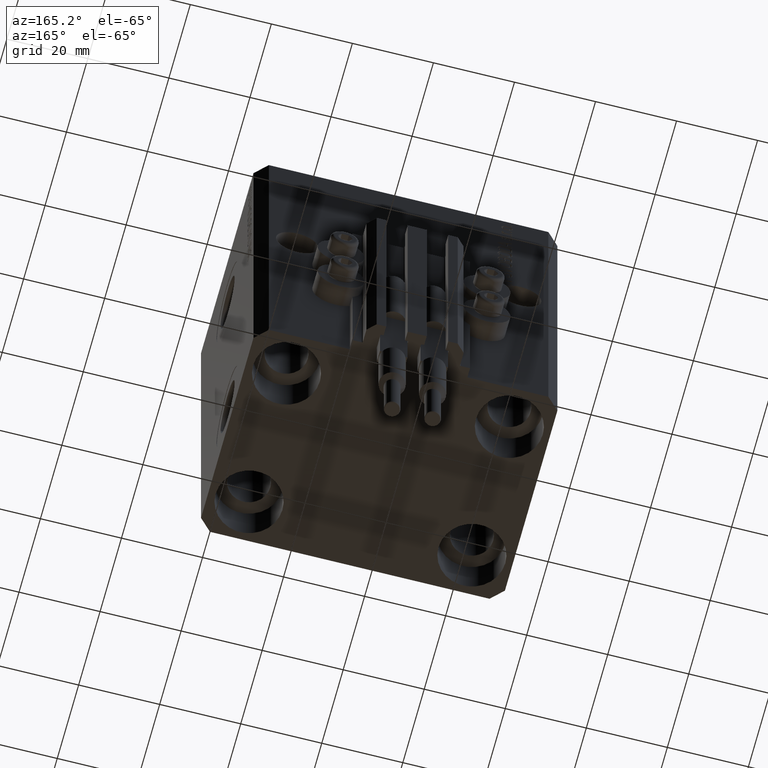
[diagram: clean part render]
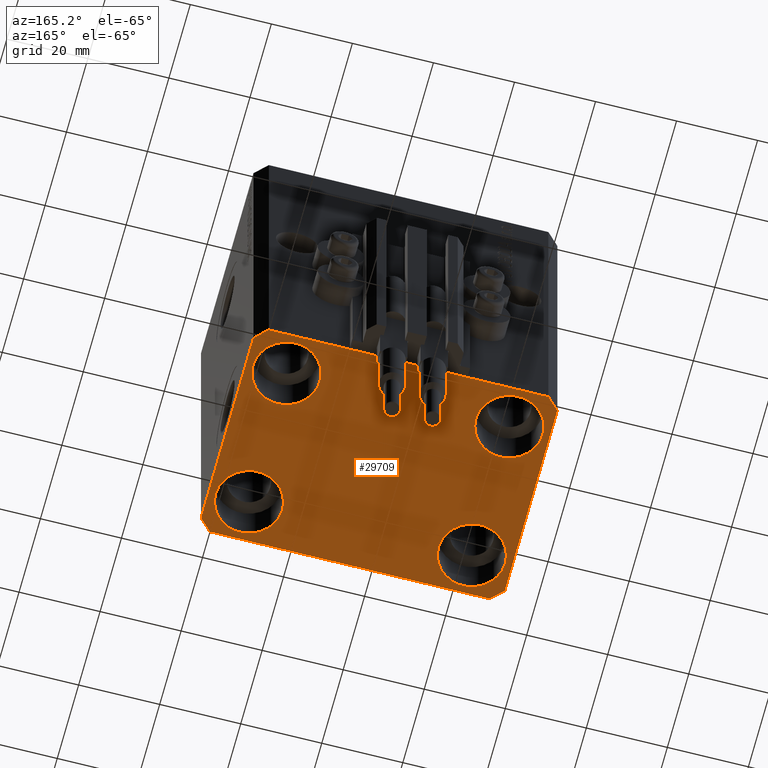
[diagram: same view with one face highlighted and labeled with its STEP entity id]
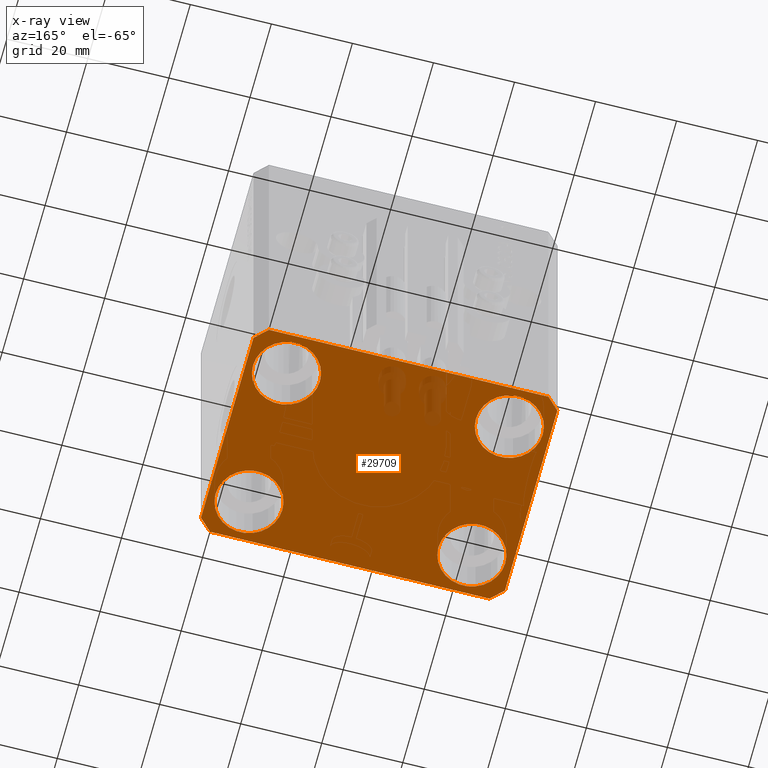
[diagram: x-ray of the same camera — body ghosted, the highlighted face saturated]
A machine part, auxiliary view. The second image highlights one B-rep face of the part: STEP entity #29709.
The next image is the same camera in x-ray: the body ghosted, the highlighted face saturated — about 4% of this face is hidden behind the body in this view.
In plain terms, the highlighted planar face has unit normal (0, 0, 1).
Its self-contained STEP definition (entity closure, byte-faithful):
#172 = EDGE_LOOP ( 'NONE', ( #11606, #16712 ) ) ;
#937 = LINE ( 'NONE', #38936, #29329 ) ;
#1115 = DIRECTION ( 'NONE',  ( -0.000000000000000000, -0.000000000000000000, 1.000000000000000000 ) ) ;
#1224 = CARTESIAN_POINT ( 'NONE',  ( 37.50000000000051870, 24.49999999999995381, -93.00000000000000000 ) ) ;
#1509 = LINE ( 'NONE', #1746, #28235 ) ;
#1602 = CARTESIAN_POINT ( 'NONE',  ( -27.50000000000000355, -17.50000000000000000, -93.00000000000000000 ) ) ;
#1746 = CARTESIAN_POINT ( 'NONE',  ( 37.49999999999999289, -24.50000000000000000, -93.00000000000000000 ) ) ;
#2081 = VECTOR ( 'NONE', #39594, 1000.000000000000000 ) ;
#2350 = ORIENTED_EDGE ( 'NONE', *, *, #44038, .T. ) ;
#2553 = EDGE_CURVE ( 'NONE', #18145, #21592, #24051, .T. ) ;
#2651 = EDGE_CURVE ( 'NONE', #33481, #22779, #9285, .T. ) ;
#3185 = CARTESIAN_POINT ( 'NONE',  ( 27.49999999999999645, 17.50000000000001066, -93.00000000000000000 ) ) ;
#3258 = CARTESIAN_POINT ( 'NONE',  ( -37.49999999999999289, 24.50000000000000000, -93.00000000000000000 ) ) ;
#3665 = CARTESIAN_POINT ( 'NONE',  ( -34.49999999999999289, 27.50000000000000000, -93.00000000000000000 ) ) ;
#3814 = VERTEX_POINT ( 'NONE', #34542 ) ;
#4061 = LINE ( 'NONE', #45245, #28482 ) ;
#4114 = VECTOR ( 'NONE', #43247, 1000.000000000000114 ) ;
#4134 = DIRECTION ( 'NONE',  ( 1.000000000000000000, 0.000000000000000000, 0.000000000000000000 ) ) ;
#4560 = AXIS2_PLACEMENT_3D ( 'NONE', #3185, #13942, #13704 ) ;
#4676 = EDGE_LOOP ( 'NONE', ( #33247, #39352, #21808, #31374, #32827, #11369, #18379, #15576 ) ) ;
#5296 = DIRECTION ( 'NONE',  ( 1.000000000000000000, 0.000000000000000000, 0.000000000000000000 ) ) ;
#6164 = AXIS2_PLACEMENT_3D ( 'NONE', #15103, #21711, #26073 ) ;
#6365 = FACE_BOUND ( 'NONE', #38099, .T. ) ;
#6383 = CARTESIAN_POINT ( 'NONE',  ( -19.25000000000000355, -17.50000000000000000, -93.00000000000000000 ) ) ;
#6801 = DIRECTION ( 'NONE',  ( 1.000000000000000000, 0.000000000000000000, 0.000000000000000000 ) ) ;
#6854 = DIRECTION ( 'NONE',  ( 0.000000000000000000, 0.000000000000000000, 1.000000000000000000 ) ) ;
#6996 = EDGE_CURVE ( 'NONE', #43619, #36894, #22877, .T. ) ;
#7986 = EDGE_CURVE ( 'NONE', #14867, #24941, #4061, .T. ) ;
#8035 = CARTESIAN_POINT ( 'NONE',  ( -34.49999999999998579, -27.49999999999999645, -93.00000000000000000 ) ) ;
#8318 = DIRECTION ( 'NONE',  ( 1.000000000000000000, 0.000000000000000000, 0.000000000000000000 ) ) ;
#9096 = EDGE_CURVE ( 'NONE', #42741, #47359, #18287, .T. ) ;
#9236 = ORIENTED_EDGE ( 'NONE', *, *, #14415, .T. ) ;
#9285 = CIRCLE ( 'NONE', #36495, 8.250000000000000000 ) ;
#10066 = CARTESIAN_POINT ( 'NONE',  ( -35.75000000000000711, -17.50000000000000000, -93.00000000000000000 ) ) ;
#10216 = DIRECTION ( 'NONE',  ( 1.000000000000000000, 0.000000000000000000, 0.000000000000000000 ) ) ;
#10695 = EDGE_CURVE ( 'NONE', #20668, #43619, #31011, .T. ) ;
#11369 = ORIENTED_EDGE ( 'NONE', *, *, #7986, .F. ) ;
#11606 = ORIENTED_EDGE ( 'NONE', *, *, #13691, .T. ) ;
#12051 = EDGE_CURVE ( 'NONE', #41084, #14867, #28644, .T. ) ;
#12240 = AXIS2_PLACEMENT_3D ( 'NONE', #1602, #1115, #12573 ) ;
#12562 = CARTESIAN_POINT ( 'NONE',  ( 34.49999999999999289, -27.49999999999999645, -93.00000000000000000 ) ) ;
#12573 = DIRECTION ( 'NONE',  ( 1.000000000000000000, 0.000000000000000000, 0.000000000000000000 ) ) ;
#12625 = CIRCLE ( 'NONE', #27409, 8.250000000000000000 ) ;
#13141 = EDGE_LOOP ( 'NONE', ( #25698, #2350 ) ) ;
#13691 = EDGE_CURVE ( 'NONE', #22779, #33481, #26209, .T. ) ;
#13704 = DIRECTION ( 'NONE',  ( 1.000000000000000000, 0.000000000000000000, 0.000000000000000000 ) ) ;
#13881 = CARTESIAN_POINT ( 'NONE',  ( 35.75000000000000711, -17.50000000000000000, -93.00000000000000000 ) ) ;
#13942 = DIRECTION ( 'NONE',  ( -0.000000000000000000, -0.000000000000000000, 1.000000000000000000 ) ) ;
#14415 = EDGE_CURVE ( 'NONE', #47359, #42741, #16963, .T. ) ;
#14867 = VERTEX_POINT ( 'NONE', #27875 ) ;
#15103 = CARTESIAN_POINT ( 'NONE',  ( 27.50000000000000355, -17.50000000000000000, -93.00000000000000000 ) ) ;
#15576 = ORIENTED_EDGE ( 'NONE', *, *, #42108, .F. ) ;
#15811 = DIRECTION ( 'NONE',  ( -0.7071067811865471286, -0.7071067811865479058, 0.000000000000000000 ) ) ;
#16659 = DIRECTION ( 'NONE',  ( -0.7071067811865356934, 0.7071067811865594521, 0.000000000000000000 ) ) ;
#16712 = ORIENTED_EDGE ( 'NONE', *, *, #2651, .T. ) ;
#16963 = CIRCLE ( 'NONE', #41019, 8.250000000000000000 ) ;
#17593 = CARTESIAN_POINT ( 'NONE',  ( 0.000000000000000000, 0.000000000000000000, -93.00000000000000000 ) ) ;
#17824 = VERTEX_POINT ( 'NONE', #30498 ) ;
#18145 = VERTEX_POINT ( 'NONE', #41658 ) ;
#18287 = CIRCLE ( 'NONE', #25319, 8.250000000000000000 ) ;
#18379 = ORIENTED_EDGE ( 'NONE', *, *, #12051, .F. ) ;
#19786 = EDGE_CURVE ( 'NONE', #21592, #18145, #22580, .T. ) ;
#20668 = VERTEX_POINT ( 'NONE', #1224 ) ;
#20948 = CIRCLE ( 'NONE', #6164, 8.250000000000000000 ) ;
#21230 = PLANE ( 'NONE',  #45361 ) ;
#21592 = VERTEX_POINT ( 'NONE', #22461 ) ;
#21711 = DIRECTION ( 'NONE',  ( -0.000000000000000000, -0.000000000000000000, 1.000000000000000000 ) ) ;
#21808 = ORIENTED_EDGE ( 'NONE', *, *, #29546, .F. ) ;
#21899 = CARTESIAN_POINT ( 'NONE',  ( -34.49999999999998579, -27.49999999999999645, -93.00000000000000000 ) ) ;
#21952 = FACE_BOUND ( 'NONE', #13141, .T. ) ;
#22461 = CARTESIAN_POINT ( 'NONE',  ( 19.25000000000000000, 17.50000000000001066, -93.00000000000000000 ) ) ;
#22580 = CIRCLE ( 'NONE', #42820, 8.249999999999992895 ) ;
#22779 = VERTEX_POINT ( 'NONE', #10066 ) ;
#22877 = LINE ( 'NONE', #26527, #38525 ) ;
#23772 = CARTESIAN_POINT ( 'NONE',  ( 34.49999999999999289, -27.49999999999999645, -93.00000000000000000 ) ) ;
#23834 = CARTESIAN_POINT ( 'NONE',  ( 27.49999999999999645, 17.50000000000001066, -93.00000000000000000 ) ) ;
#24005 = CARTESIAN_POINT ( 'NONE',  ( 34.50000000000056843, 27.50000000000000000, -93.00000000000000000 ) ) ;
#24051 = CIRCLE ( 'NONE', #4560, 8.249999999999992895 ) ;
#24415 = EDGE_CURVE ( 'NONE', #17824, #45128, #12625, .T. ) ;
#24941 = VERTEX_POINT ( 'NONE', #8035 ) ;
#25319 = AXIS2_PLACEMENT_3D ( 'NONE', #25323, #40159, #6801 ) ;
#25323 = CARTESIAN_POINT ( 'NONE',  ( -27.50000000000000355, 17.50000000000000000, -93.00000000000000000 ) ) ;
#25368 = VECTOR ( 'NONE', #16659, 1000.000000000000114 ) ;
#25378 = FACE_BOUND ( 'NONE', #172, .T. ) ;
#25698 = ORIENTED_EDGE ( 'NONE', *, *, #24415, .T. ) ;
#26073 = DIRECTION ( 'NONE',  ( 1.000000000000000000, 0.000000000000000000, 0.000000000000000000 ) ) ;
#26209 = CIRCLE ( 'NONE', #12240, 8.250000000000000000 ) ;
#26361 = EDGE_LOOP ( 'NONE', ( #40845, #41087 ) ) ;
#26471 = EDGE_CURVE ( 'NONE', #31514, #3814, #35455, .T. ) ;
#26527 = CARTESIAN_POINT ( 'NONE',  ( 34.50000000000056843, 27.50000000000000000, -93.00000000000000000 ) ) ;
#27343 = DIRECTION ( 'NONE',  ( 1.076236605503979380E-14, 1.000000000000000000, 0.000000000000000000 ) ) ;
#27376 = CARTESIAN_POINT ( 'NONE',  ( 37.50000000000051870, 24.49999999999995381, -93.00000000000000000 ) ) ;
#27409 = AXIS2_PLACEMENT_3D ( 'NONE', #38161, #34503, #30113 ) ;
#27875 = CARTESIAN_POINT ( 'NONE',  ( -37.49999999999999289, -24.50000000000000000, -93.00000000000000000 ) ) ;
#28235 = VECTOR ( 'NONE', #27343, 1000.000000000000000 ) ;
#28482 = VECTOR ( 'NONE', #45008, 1000.000000000000000 ) ;
#28644 = LINE ( 'NONE', #40069, #2081 ) ;
#29329 = VECTOR ( 'NONE', #15811, 1000.000000000000000 ) ;
#29546 = EDGE_CURVE ( 'NONE', #3814, #20668, #1509, .T. ) ;
#29709 = ADVANCED_FACE ( 'NONE', ( #25378, #21952, #40210, #6365, #36786 ), #21230, .F. ) ;
#30113 = DIRECTION ( 'NONE',  ( 1.000000000000000000, 0.000000000000000000, 0.000000000000000000 ) ) ;
#30235 = CARTESIAN_POINT ( 'NONE',  ( -35.75000000000000711, 17.50000000000000000, -93.00000000000000000 ) ) ;
#30498 = CARTESIAN_POINT ( 'NONE',  ( 19.25000000000000000, -17.50000000000000000, -93.00000000000000000 ) ) ;
#31011 = LINE ( 'NONE', #27376, #25368 ) ;
#31189 = DIRECTION ( 'NONE',  ( -0.000000000000000000, -0.000000000000000000, 1.000000000000000000 ) ) ;
#31374 = ORIENTED_EDGE ( 'NONE', *, *, #26471, .F. ) ;
#31514 = VERTEX_POINT ( 'NONE', #23772 ) ;
#32827 = ORIENTED_EDGE ( 'NONE', *, *, #45138, .F. ) ;
#33247 = ORIENTED_EDGE ( 'NONE', *, *, #6996, .F. ) ;
#33481 = VERTEX_POINT ( 'NONE', #6383 ) ;
#34111 = DIRECTION ( 'NONE',  ( -0.000000000000000000, -0.000000000000000000, 1.000000000000000000 ) ) ;
#34212 = ORIENTED_EDGE ( 'NONE', *, *, #9096, .T. ) ;
#34503 = DIRECTION ( 'NONE',  ( -0.000000000000000000, -0.000000000000000000, 1.000000000000000000 ) ) ;
#34542 = CARTESIAN_POINT ( 'NONE',  ( 37.49999999999999289, -24.50000000000000000, -93.00000000000000000 ) ) ;
#34614 = CARTESIAN_POINT ( 'NONE',  ( -27.50000000000000355, 17.50000000000000000, -93.00000000000000000 ) ) ;
#35455 = LINE ( 'NONE', #12562, #4114 ) ;
#36495 = AXIS2_PLACEMENT_3D ( 'NONE', #40934, #34111, #4134 ) ;
#36558 = DIRECTION ( 'NONE',  ( 1.000000000000000000, 0.000000000000000000, -0.000000000000000000 ) ) ;
#36786 = FACE_OUTER_BOUND ( 'NONE', #4676, .T. ) ;
#36894 = VERTEX_POINT ( 'NONE', #3665 ) ;
#37475 = DIRECTION ( 'NONE',  ( -1.000000000000000000, 0.000000000000000000, 0.000000000000000000 ) ) ;
#38099 = EDGE_LOOP ( 'NONE', ( #34212, #9236 ) ) ;
#38161 = CARTESIAN_POINT ( 'NONE',  ( 27.50000000000000355, -17.50000000000000000, -93.00000000000000000 ) ) ;
#38525 = VECTOR ( 'NONE', #37475, 1000.000000000000000 ) ;
#38936 = CARTESIAN_POINT ( 'NONE',  ( -34.49999999999999289, 27.50000000000000000, -93.00000000000000000 ) ) ;
#39352 = ORIENTED_EDGE ( 'NONE', *, *, #10695, .F. ) ;
#39594 = DIRECTION ( 'NONE',  ( 0.000000000000000000, -1.000000000000000000, 0.000000000000000000 ) ) ;
#40069 = CARTESIAN_POINT ( 'NONE',  ( -37.49999999999999289, 24.50000000000000000, -93.00000000000000000 ) ) ;
#40159 = DIRECTION ( 'NONE',  ( -0.000000000000000000, -0.000000000000000000, 1.000000000000000000 ) ) ;
#40210 = FACE_BOUND ( 'NONE', #26361, .T. ) ;
#40845 = ORIENTED_EDGE ( 'NONE', *, *, #19786, .T. ) ;
#40934 = CARTESIAN_POINT ( 'NONE',  ( -27.50000000000000355, -17.50000000000000000, -93.00000000000000000 ) ) ;
#41019 = AXIS2_PLACEMENT_3D ( 'NONE', #34614, #31189, #8318 ) ;
#41084 = VERTEX_POINT ( 'NONE', #3258 ) ;
#41087 = ORIENTED_EDGE ( 'NONE', *, *, #2553, .T. ) ;
#41658 = CARTESIAN_POINT ( 'NONE',  ( 35.74999999999999289, 17.50000000000001066, -93.00000000000000000 ) ) ;
#42108 = EDGE_CURVE ( 'NONE', #36894, #41084, #937, .T. ) ;
#42671 = CARTESIAN_POINT ( 'NONE',  ( -19.25000000000000355, 17.50000000000000000, -93.00000000000000000 ) ) ;
#42741 = VERTEX_POINT ( 'NONE', #30235 ) ;
#42820 = AXIS2_PLACEMENT_3D ( 'NONE', #23834, #46222, #5296 ) ;
#43247 = DIRECTION ( 'NONE',  ( 0.7071067811865474617, 0.7071067811865474617, 0.000000000000000000 ) ) ;
#43588 = LINE ( 'NONE', #21899, #46304 ) ;
#43619 = VERTEX_POINT ( 'NONE', #24005 ) ;
#44038 = EDGE_CURVE ( 'NONE', #45128, #17824, #20948, .T. ) ;
#45008 = DIRECTION ( 'NONE',  ( 0.7071067811865483499, -0.7071067811865466846, 0.000000000000000000 ) ) ;
#45128 = VERTEX_POINT ( 'NONE', #13881 ) ;
#45138 = EDGE_CURVE ( 'NONE', #24941, #31514, #43588, .T. ) ;
#45245 = CARTESIAN_POINT ( 'NONE',  ( -37.49999999999999289, -24.50000000000000000, -93.00000000000000000 ) ) ;
#45361 = AXIS2_PLACEMENT_3D ( 'NONE', #17593, #6854, #36558 ) ;
#46222 = DIRECTION ( 'NONE',  ( -0.000000000000000000, -0.000000000000000000, 1.000000000000000000 ) ) ;
#46304 = VECTOR ( 'NONE', #10216, 1000.000000000000000 ) ;
#47359 = VERTEX_POINT ( 'NONE', #42671 ) ;